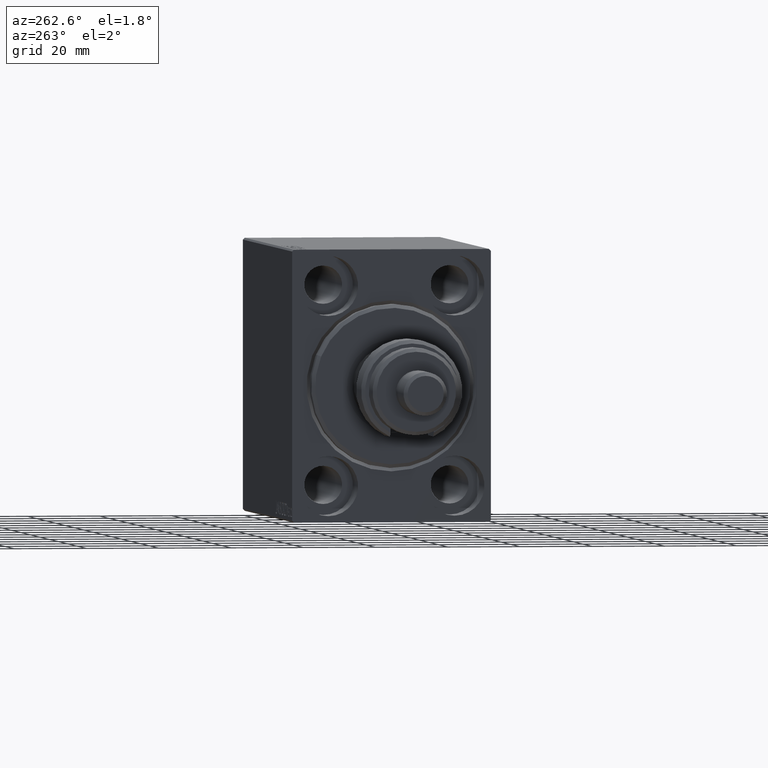
[diagram: clean part render]
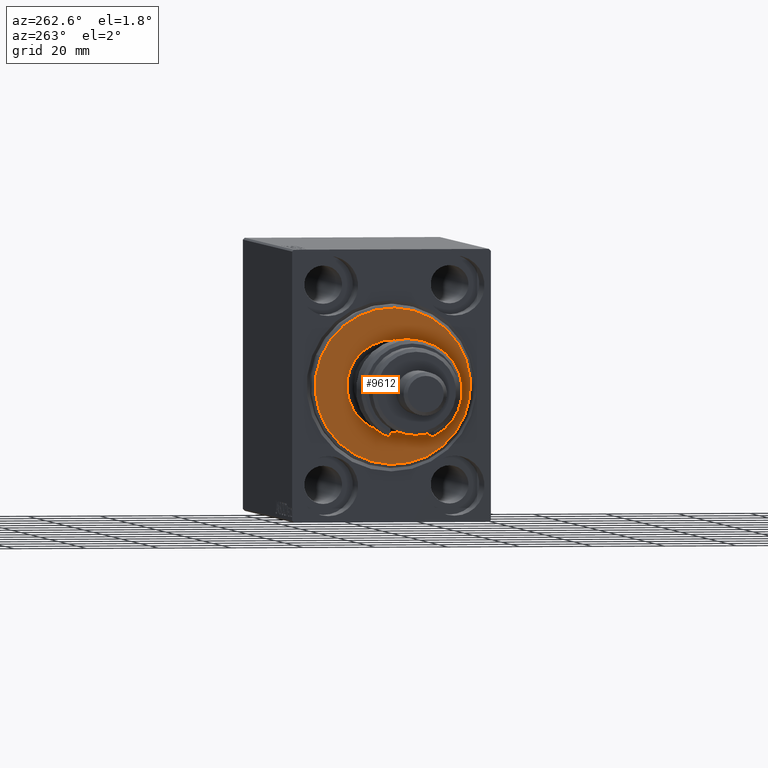
[diagram: same view with one face highlighted and labeled with its STEP entity id]
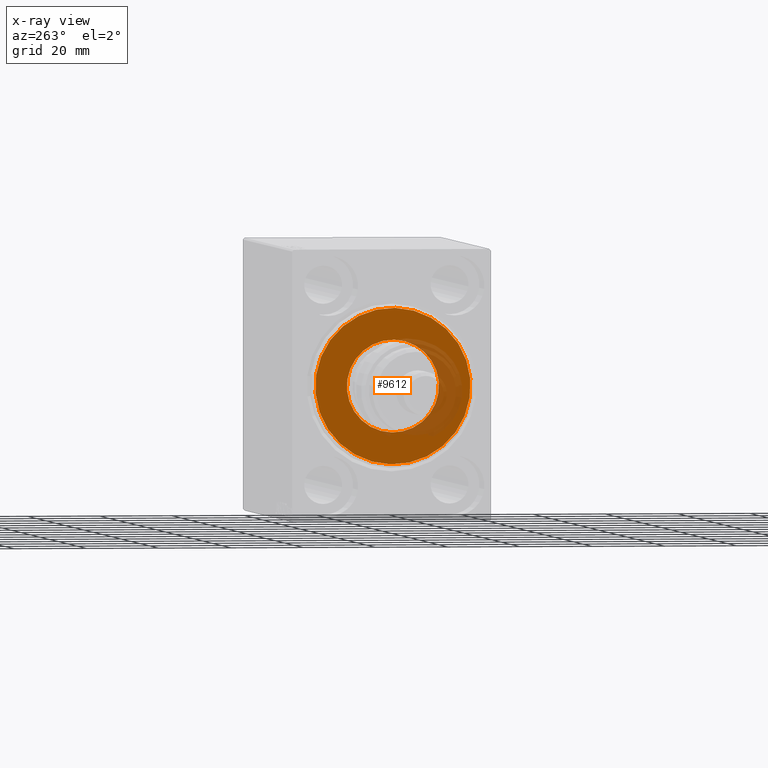
[diagram: x-ray of the same camera — body ghosted, the highlighted face saturated]
A machine part, auxiliary view. The second image highlights one B-rep face of the part: STEP entity #9612.
The next image is the same camera in x-ray: the body ghosted, the highlighted face saturated — about 20% of this face is hidden behind the body in this view.
In plain terms, the highlighted planar face has unit normal (-1, 0, 0).
Its self-contained STEP definition (entity closure, byte-faithful):
#1099 = FACE_BOUND ( 'NONE', #26853, .T. ) ;
#2743 = CARTESIAN_POINT ( 'NONE',  ( 3.000000000000000000, 0.000000000000000000, 0.000000000000000000 ) ) ;
#5952 = ORIENTED_EDGE ( 'NONE', *, *, #18058, .T. ) ;
#6095 = DIRECTION ( 'NONE',  ( -1.000000000000000000, 0.000000000000000000, -0.000000000000000000 ) ) ;
#7849 = EDGE_CURVE ( 'NONE', #39131, #18702, #16262, .T. ) ;
#8920 = DIRECTION ( 'NONE',  ( 1.000000000000000000, -0.000000000000000000, 0.000000000000000000 ) ) ;
#9477 = CARTESIAN_POINT ( 'NONE',  ( 3.000000000000000000, 0.000000000000000000, 21.50000000000000355 ) ) ;
#9612 = ADVANCED_FACE ( 'NONE', ( #41560, #1099 ), #37070, .T. ) ;
#11192 = CIRCLE ( 'NONE', #43670, 21.50000000000000355 ) ;
#13210 = CARTESIAN_POINT ( 'NONE',  ( 3.000000000000000000, 0.000000000000000000, 0.000000000000000000 ) ) ;
#15804 = CARTESIAN_POINT ( 'NONE',  ( 3.000000000000000000, 0.000000000000000000, 0.000000000000000000 ) ) ;
#16262 = CIRCLE ( 'NONE', #22290, 21.50000000000000355 ) ;
#16595 = DIRECTION ( 'NONE',  ( 0.000000000000000000, 0.000000000000000000, -1.000000000000000000 ) ) ;
#18058 = EDGE_CURVE ( 'NONE', #22989, #20223, #31921, .T. ) ;
#18344 = CARTESIAN_POINT ( 'NONE',  ( 3.000000000000000000, 0.000000000000000000, 12.75000000000000000 ) ) ;
#18702 = VERTEX_POINT ( 'NONE', #9477 ) ;
#18727 = AXIS2_PLACEMENT_3D ( 'NONE', #44738, #19450, #16595 ) ;
#19450 = DIRECTION ( 'NONE',  ( -1.000000000000000000, 0.000000000000000000, -0.000000000000000000 ) ) ;
#20223 = VERTEX_POINT ( 'NONE', #18344 ) ;
#21204 = DIRECTION ( 'NONE',  ( 0.000000000000000000, 0.000000000000000000, -1.000000000000000000 ) ) ;
#21911 = DIRECTION ( 'NONE',  ( 1.000000000000000000, -0.000000000000000000, 0.000000000000000000 ) ) ;
#22135 = CARTESIAN_POINT ( 'NONE',  ( 3.000000000000000000, 0.000000000000000000, 0.000000000000000000 ) ) ;
#22290 = AXIS2_PLACEMENT_3D ( 'NONE', #22135, #21911, #29469 ) ;
#22383 = ORIENTED_EDGE ( 'NONE', *, *, #36046, .T. ) ;
#22989 = VERTEX_POINT ( 'NONE', #39828 ) ;
#23601 = DIRECTION ( 'NONE',  ( 0.000000000000000000, 0.000000000000000000, -1.000000000000000000 ) ) ;
#23833 = AXIS2_PLACEMENT_3D ( 'NONE', #15804, #8920, #37781 ) ;
#26853 = EDGE_LOOP ( 'NONE', ( #22383, #5952 ) ) ;
#27007 = EDGE_LOOP ( 'NONE', ( #40907, #44213 ) ) ;
#29469 = DIRECTION ( 'NONE',  ( 0.000000000000000000, 0.000000000000000000, -1.000000000000000000 ) ) ;
#31921 = CIRCLE ( 'NONE', #38711, 12.75000000000000000 ) ;
#35400 = DIRECTION ( 'NONE',  ( 1.000000000000000000, -0.000000000000000000, 0.000000000000000000 ) ) ;
#36046 = EDGE_CURVE ( 'NONE', #20223, #22989, #39112, .T. ) ;
#37070 = PLANE ( 'NONE',  #23833 ) ;
#37161 = EDGE_CURVE ( 'NONE', #18702, #39131, #11192, .T. ) ;
#37781 = DIRECTION ( 'NONE',  ( 0.000000000000000000, 0.000000000000000000, -1.000000000000000000 ) ) ;
#38711 = AXIS2_PLACEMENT_3D ( 'NONE', #13210, #6095, #23601 ) ;
#38724 = CARTESIAN_POINT ( 'NONE',  ( 3.000000000000000000, 2.694222958124177598E-15, -21.50000000000000355 ) ) ;
#39112 = CIRCLE ( 'NONE', #18727, 12.75000000000000000 ) ;
#39131 = VERTEX_POINT ( 'NONE', #38724 ) ;
#39828 = CARTESIAN_POINT ( 'NONE',  ( 3.000000000000000000, 1.561424668912874914E-15, -12.75000000000000000 ) ) ;
#40907 = ORIENTED_EDGE ( 'NONE', *, *, #37161, .T. ) ;
#41560 = FACE_OUTER_BOUND ( 'NONE', #27007, .T. ) ;
#43670 = AXIS2_PLACEMENT_3D ( 'NONE', #2743, #35400, #21204 ) ;
#44213 = ORIENTED_EDGE ( 'NONE', *, *, #7849, .T. ) ;
#44738 = CARTESIAN_POINT ( 'NONE',  ( 3.000000000000000000, 0.000000000000000000, 0.000000000000000000 ) ) ;